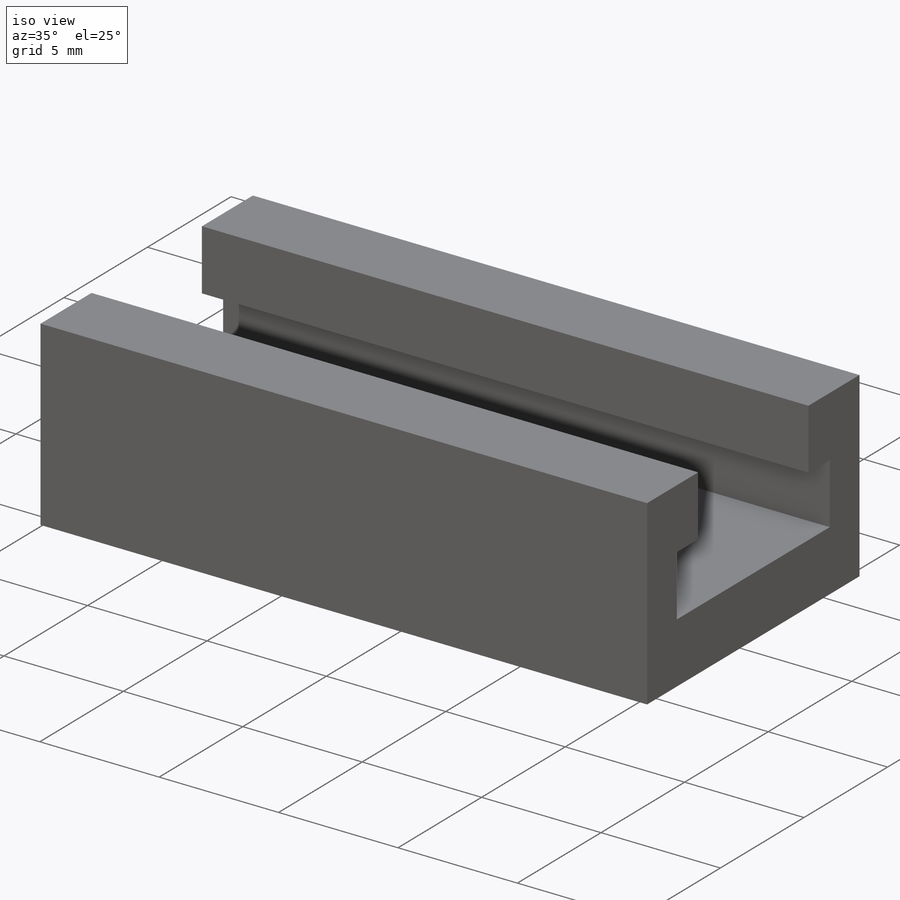
[diagram: iso view]
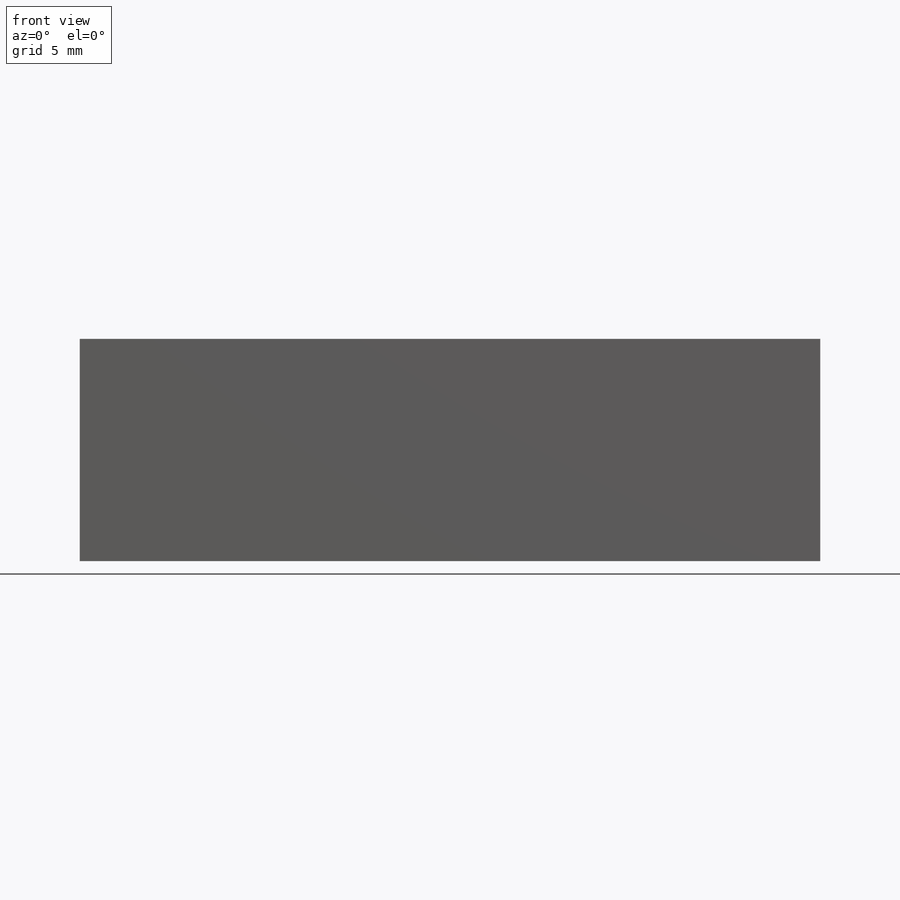
[diagram: front view]
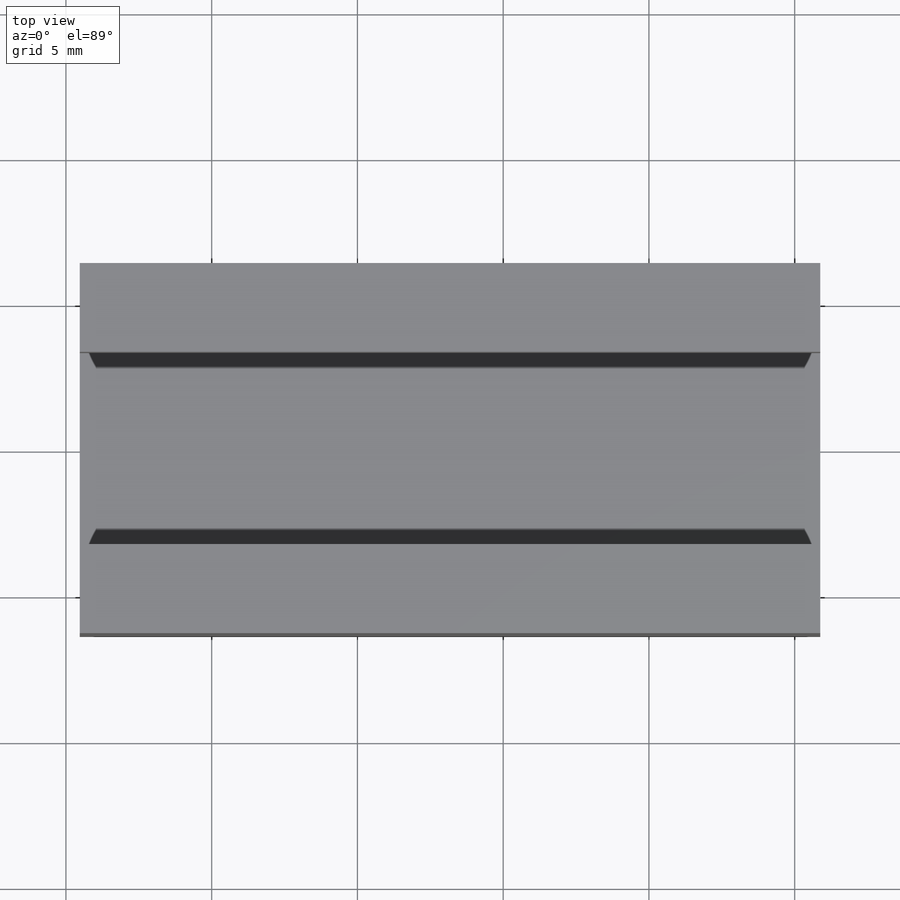
[diagram: top view]
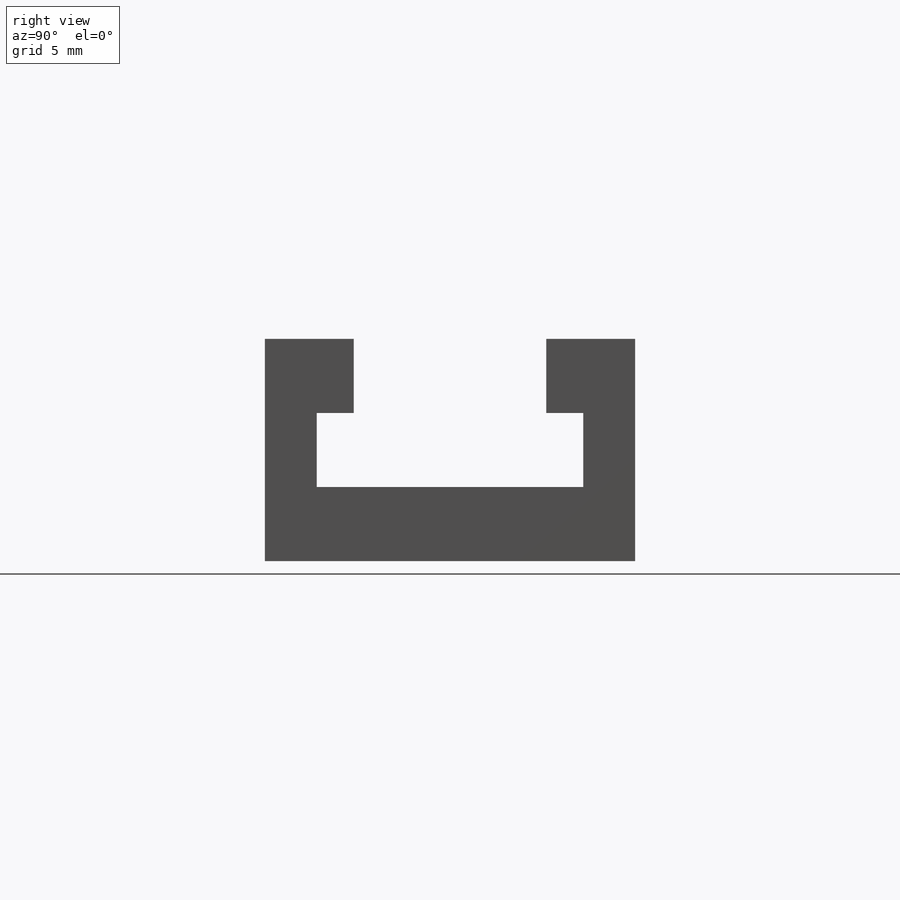
[diagram: right view]
SOLIDWORKS PART (.sldprt)
format: sldprt  version: not decoded by parser v0  size: 203,776 bytes
history: native  units: mm
features: sketch x3, extrude x3, material x1 (+13 scaffold rows collapsed)
feature tree (20):
  scaffold x13  (default folders/planes/origin — collapsed)
  material  "Material <not specified>"
  sketch  "Sketch1"  dims[c1.D1=19.05mm c1.D2=9.144mm c1.D3=2.54mm c1.D4=9.144mm c2.D4=~178.327738deg c3.D4=2.54mm c3.D5=6.35mm c3.D3=12.7mm c4.D4=1.778mm]
  extrude  "Boss-Extrude1"  Depth=2.54mm
  sketch  "Sketch2"  dims[c1.D1=1.27mm c1.D2=1.27mm c1.D3=5.08mm c2.D1=1.27mm c2.D4=0.0mm]
  extrude  "Boss-Extrude2"  Depth=2.54mm
  sketch  "Sketch3"  dims[D1=12.7mm D2=25.4mm D3=28.448mm]
  extrude  "Boss-Extrude3"  Depth=2.54mm
decode coverage: 6 of 6 modeling features carry decoded parameters
note: ~ marks probable driven/reference dimensions
note: suppression state not decoded; provenance and decode notes live in map.json
